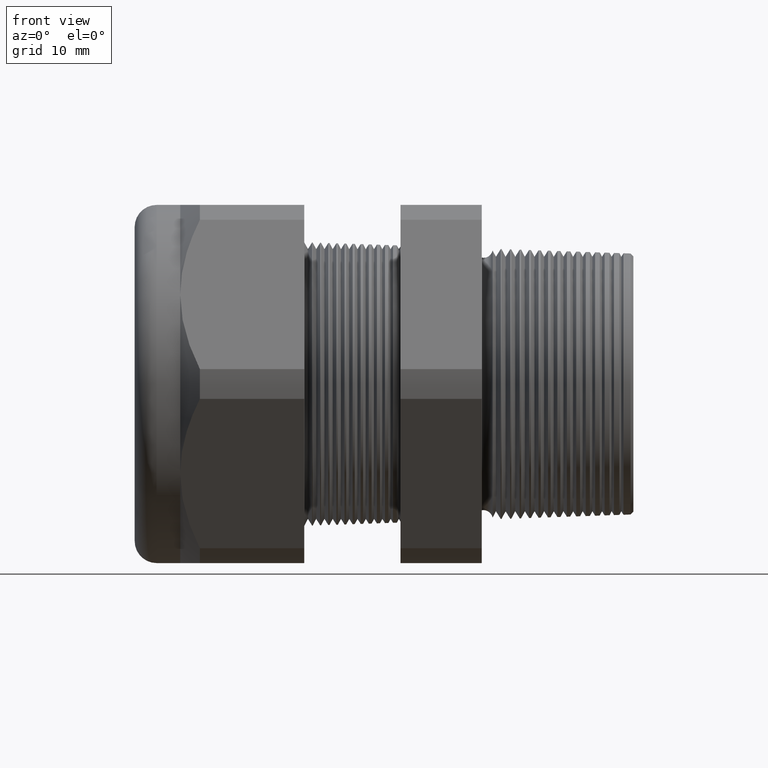
[diagram: clean part render]
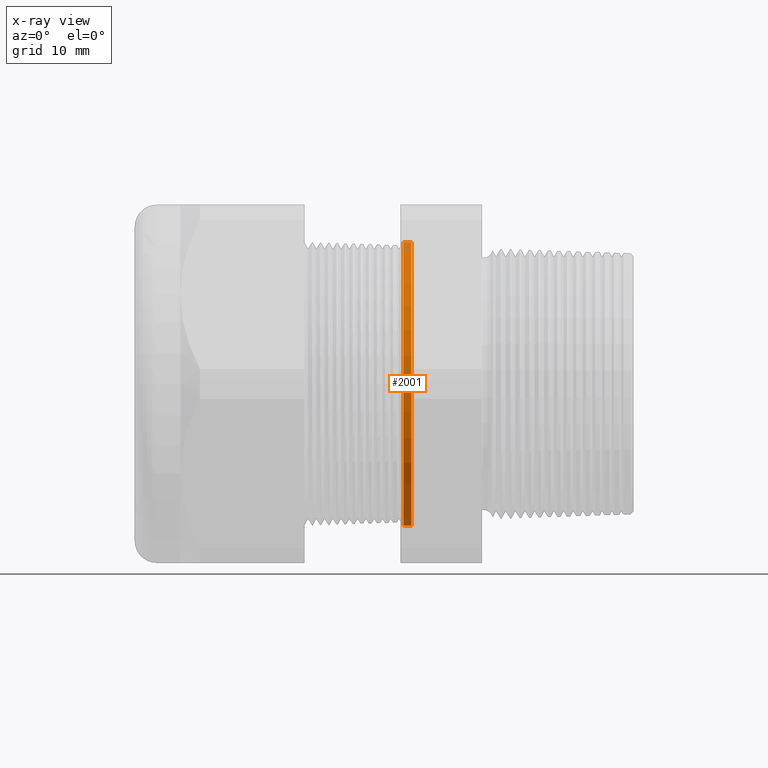
[diagram: x-ray — body ghosted, one internal face saturated and labeled with its STEP entity id]
A machine part, front view, then the same camera in x-ray: the body is ghosted and one INTERNAL B-rep face — a face not visible from any outside direction — is saturated and labeled: STEP entity #2001.
In plain terms, the highlighted conical surface has half-angle 2 deg.
Its self-contained STEP definition (entity closure, byte-faithful):
#2001 = ADVANCED_FACE ( 'NONE', ( #5693 ), #5751, .F. ) ;
#2002 = EDGE_LOOP ( 'NONE', ( #2003, #2007, #2060, #2063 ) ) ;
#2003 = ORIENTED_EDGE ( 'NONE', *, *, #2004, .T. ) ;
#2004 = EDGE_CURVE ( 'NONE', #2005, #2006, #5746, .T. ) ;
#2005 = VERTEX_POINT ( 'NONE', #5742 ) ;
#2006 = VERTEX_POINT ( 'NONE', #5741 ) ;
#2007 = ORIENTED_EDGE ( 'NONE', *, *, #2008, .T. ) ;
#2008 = EDGE_CURVE ( 'NONE', #2006, #2009, #5740, .T. ) ;
#2009 = VERTEX_POINT ( 'NONE', #5736 ) ;
#2060 = ORIENTED_EDGE ( 'NONE', *, *, #2061, .F. ) ;
#2061 = EDGE_CURVE ( 'NONE', #2062, #2009, #5840, .T. ) ;
#2062 = VERTEX_POINT ( 'NONE', #5836 ) ;
#2063 = ORIENTED_EDGE ( 'NONE', *, *, #2064, .F. ) ;
#2064 = EDGE_CURVE ( 'NONE', #2005, #2062, #5835, .T. ) ;
#5688 = CARTESIAN_POINT ( 'NONE',  ( -0.5657957411410831100, 0.0000000000000000000, 0.0000000000000000000 ) ) ;
#5693 = FACE_OUTER_BOUND ( 'NONE', #2002, .T. ) ;
#5736 = CARTESIAN_POINT ( 'NONE',  ( -0.5946456692913388900, 6.306931015608869800E-017, -0.5150000000000000100 ) ) ;
#5737 = DIRECTION ( 'NONE',  ( -0.9993908270190959800, 4.273955692856297500E-018, -0.03489949670249407200 ) ) ;
#5738 = VECTOR ( 'NONE', #5737, 39.37007874015748100 ) ;
#5739 = CARTESIAN_POINT ( 'NONE',  ( -0.5657957411410831100, 6.294593168259994100E-017, -0.5139925383092116600 ) ) ;
#5740 = LINE ( 'NONE', #5739, #5738 ) ;
#5741 = CARTESIAN_POINT ( 'NONE',  ( -0.5657957411410831100, 0.0000000000000000000, -0.5139925383092116600 ) ) ;
#5742 = CARTESIAN_POINT ( 'NONE',  ( -0.5657957411410831100, 6.294593168259994100E-017, 0.5139925383092116600 ) ) ;
#5743 = DIRECTION ( 'NONE',  ( 0.0000000000000000000, 0.0000000000000000000, -1.000000000000000000 ) ) ;
#5744 = DIRECTION ( 'NONE',  ( 1.000000000000000000, 0.0000000000000000000, 0.0000000000000000000 ) ) ;
#5745 = AXIS2_PLACEMENT_3D ( 'NONE', #5750, #5744, #5743 ) ;
#5746 = CIRCLE ( 'NONE', #5745, 0.5139925383092116600 ) ;
#5747 = DIRECTION ( 'NONE',  ( 0.0000000000000000000, 0.0000000000000000000, 1.000000000000000000 ) ) ;
#5748 = DIRECTION ( 'NONE',  ( -1.000000000000000000, 0.0000000000000000000, 0.0000000000000000000 ) ) ;
#5749 = AXIS2_PLACEMENT_3D ( 'NONE', #5688, #5748, #5747 ) ;
#5750 = CARTESIAN_POINT ( 'NONE',  ( -0.5657957411410831100, 0.0000000000000000000, 0.0000000000000000000 ) ) ;
#5751 = CONICAL_SURFACE ( 'NONE', #5749, 0.5139925383092116600, 0.03490658503987968700 ) ;
#5832 = DIRECTION ( 'NONE',  ( -0.9993908270190959800, 0.0000000000000000000, 0.03489949670249407200 ) ) ;
#5833 = VECTOR ( 'NONE', #5832, 39.37007874015748100 ) ;
#5834 = CARTESIAN_POINT ( 'NONE',  ( -0.5657957411410831100, 0.0000000000000000000, 0.5139925383092116600 ) ) ;
#5835 = LINE ( 'NONE', #5834, #5833 ) ;
#5836 = CARTESIAN_POINT ( 'NONE',  ( -0.5946456692913388900, 0.0000000000000000000, 0.5150000000000000100 ) ) ;
#5837 = DIRECTION ( 'NONE',  ( 0.0000000000000000000, 0.0000000000000000000, -1.000000000000000000 ) ) ;
#5838 = DIRECTION ( 'NONE',  ( 1.000000000000000000, 0.0000000000000000000, 0.0000000000000000000 ) ) ;
#5839 = AXIS2_PLACEMENT_3D ( 'NONE', #5845, #5838, #5837 ) ;
#5840 = CIRCLE ( 'NONE', #5839, 0.5150000000000000100 ) ;
#5845 = CARTESIAN_POINT ( 'NONE',  ( -0.5946456692913388900, 0.0000000000000000000, 0.0000000000000000000 ) ) ;